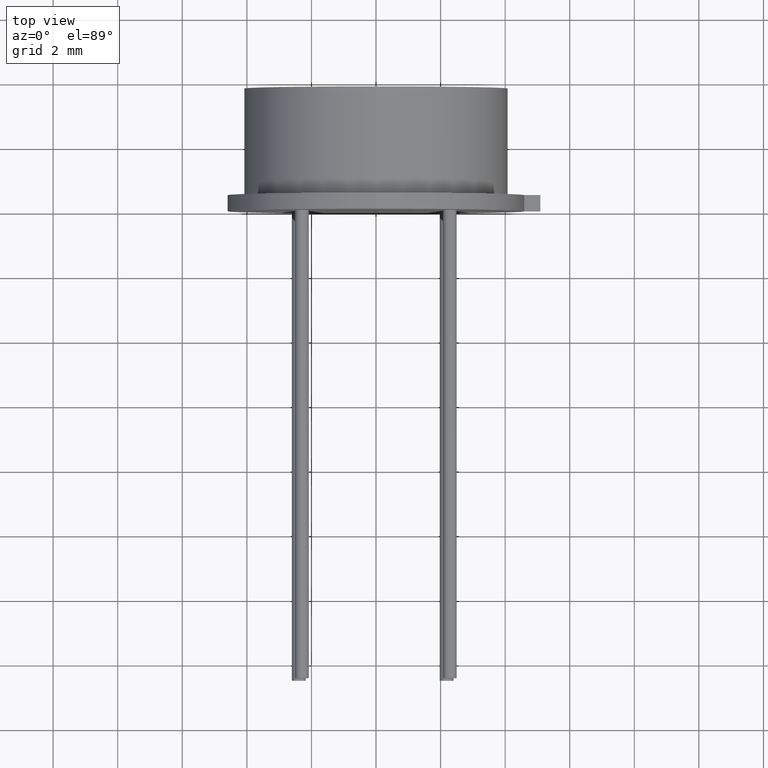
[diagram: clean part render]
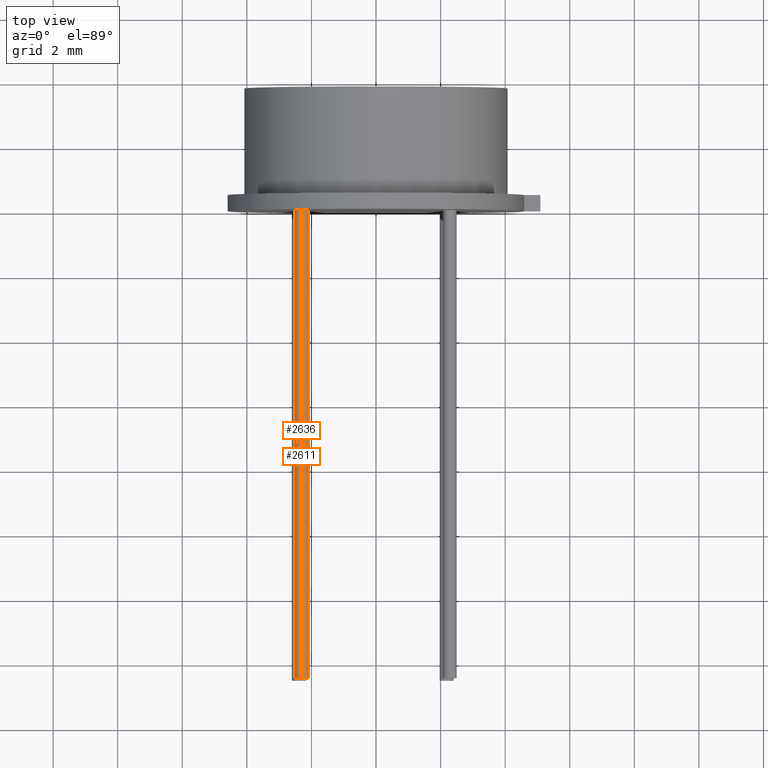
[diagram: same view with one multi-face feature highlighted, each face labeled with its STEP entity id]
A machine part, top view. The highlighted faces form ONE feature: a constant-radius fillet chain: 2 tangent blend faces with common blend radius 0.215 mm. The faces share edges in the B-rep.
Their STEP definitions:
[1] entity #2636 (Cylinder):
#31 = CARTESIAN_POINT ( 'NONE',  ( -2.297499982386057571, 0.000000000000000000, 2.284999999999999254 ) ) ;
#122 = EDGE_CURVE ( 'NONE', #2667, #3301, #2443, .T. ) ;
#218 = LINE ( 'NONE', #2251, #467 ) ;
#244 = ORIENTED_EDGE ( 'NONE', *, *, #2541, .F. ) ;
#465 = CARTESIAN_POINT ( 'NONE',  ( -2.297499982386057571, 0.000000000000000000, 2.499999999999999556 ) ) ;
#467 = VECTOR ( 'NONE', #2756, 1000.000000000000000 ) ;
#579 = ORIENTED_EDGE ( 'NONE', *, *, #3391, .T. ) ;
#737 = EDGE_LOOP ( 'NONE', ( #244, #2175, #579, #3565 ) ) ;
#907 = DIRECTION ( 'NONE',  ( -0.000000000000000000, 1.000000000000000000, -0.000000000000000000 ) ) ;
#924 = DIRECTION ( 'NONE',  ( 0.000000000000000000, 0.000000000000000000, 1.000000000000000000 ) ) ;
#989 = CARTESIAN_POINT ( 'NONE',  ( -2.297499982386057571, -14.50000000000000000, 2.499999999999999556 ) ) ;
#1161 = FACE_OUTER_BOUND ( 'NONE', #737, .T. ) ;
#1227 = EDGE_CURVE ( 'NONE', #2686, #2569, #3092, .T. ) ;
#1341 = AXIS2_PLACEMENT_3D ( 'NONE', #31, #3563, #924 ) ;
#1428 = LINE ( 'NONE', #3405, #2961 ) ;
#1443 = CYLINDRICAL_SURFACE ( 'NONE', #3332, 0.2150000000000003575 ) ;
#1466 = CARTESIAN_POINT ( 'NONE',  ( -2.297499982386057571, -14.50000000000000000, 2.284999999999999254 ) ) ;
#1873 = DIRECTION ( 'NONE',  ( 0.000000000000000000, 0.000000000000000000, 1.000000000000000000 ) ) ;
#1981 = CARTESIAN_POINT ( 'NONE',  ( -2.297499982386057571, 0.000000000000000000, 2.069999999999998952 ) ) ;
#2175 = ORIENTED_EDGE ( 'NONE', *, *, #122, .F. ) ;
#2223 = CARTESIAN_POINT ( 'NONE',  ( -2.297499982386057571, -14.50000000000000000, 2.284999999999999254 ) ) ;
#2251 = CARTESIAN_POINT ( 'NONE',  ( -2.297499982386057571, -14.50000000000000000, 2.499999999999999556 ) ) ;
#2443 = CIRCLE ( 'NONE', #3236, 0.2150000000000003575 ) ;
#2523 = DIRECTION ( 'NONE',  ( -0.000000000000000000, 1.000000000000000000, -0.000000000000000000 ) ) ;
#2541 = EDGE_CURVE ( 'NONE', #3301, #2569, #1428, .T. ) ;
#2569 = VERTEX_POINT ( 'NONE', #1981 ) ;
#2636 = ADVANCED_FACE ( 'NONE', ( #1161 ), #1443, .T. ) ;
#2667 = VERTEX_POINT ( 'NONE', #989 ) ;
#2686 = VERTEX_POINT ( 'NONE', #465 ) ;
#2756 = DIRECTION ( 'NONE',  ( -0.000000000000000000, 1.000000000000000000, -0.000000000000000000 ) ) ;
#2809 = DIRECTION ( 'NONE',  ( 0.000000000000000000, -1.000000000000000000, 0.000000000000000000 ) ) ;
#2961 = VECTOR ( 'NONE', #2523, 1000.000000000000000 ) ;
#3092 = CIRCLE ( 'NONE', #1341, 0.2150000000000003575 ) ;
#3161 = CARTESIAN_POINT ( 'NONE',  ( -2.297499982386057571, -14.50000000000000000, 2.069999999999998952 ) ) ;
#3169 = DIRECTION ( 'NONE',  ( 0.000000000000000000, 0.000000000000000000, -1.000000000000000000 ) ) ;
#3236 = AXIS2_PLACEMENT_3D ( 'NONE', #2223, #2809, #3169 ) ;
#3301 = VERTEX_POINT ( 'NONE', #3161 ) ;
#3332 = AXIS2_PLACEMENT_3D ( 'NONE', #1466, #907, #1873 ) ;
#3391 = EDGE_CURVE ( 'NONE', #2667, #2686, #218, .T. ) ;
#3405 = CARTESIAN_POINT ( 'NONE',  ( -2.297499982386057571, -14.50000000000000000, 2.069999999999998952 ) ) ;
#3563 = DIRECTION ( 'NONE',  ( -0.000000000000000000, -1.000000000000000000, -0.000000000000000000 ) ) ;
#3565 = ORIENTED_EDGE ( 'NONE', *, *, #1227, .T. ) ;
[2] entity #2611 (Cylinder):
#82 = DIRECTION ( 'NONE',  ( 0.000000000000000000, 0.000000000000000000, 1.000000000000000000 ) ) ;
#186 = CIRCLE ( 'NONE', #2250, 0.2150000000000003575 ) ;
#218 = LINE ( 'NONE', #2251, #467 ) ;
#465 = CARTESIAN_POINT ( 'NONE',  ( -2.297499982386057571, 0.000000000000000000, 2.499999999999999556 ) ) ;
#467 = VECTOR ( 'NONE', #2756, 1000.000000000000000 ) ;
#539 = EDGE_CURVE ( 'NONE', #2569, #2686, #186, .T. ) ;
#564 = CARTESIAN_POINT ( 'NONE',  ( -2.297499982386057571, -14.50000000000000000, 2.284999999999999254 ) ) ;
#867 = FACE_OUTER_BOUND ( 'NONE', #2144, .T. ) ;
#900 = AXIS2_PLACEMENT_3D ( 'NONE', #564, #3735, #1177 ) ;
#989 = CARTESIAN_POINT ( 'NONE',  ( -2.297499982386057571, -14.50000000000000000, 2.499999999999999556 ) ) ;
#1177 = DIRECTION ( 'NONE',  ( 0.000000000000000000, 0.000000000000000000, 1.000000000000000000 ) ) ;
#1212 = EDGE_CURVE ( 'NONE', #3301, #2667, #3278, .T. ) ;
#1428 = LINE ( 'NONE', #3405, #2961 ) ;
#1465 = ORIENTED_EDGE ( 'NONE', *, *, #539, .T. ) ;
#1536 = DIRECTION ( 'NONE',  ( -0.000000000000000000, -1.000000000000000000, -0.000000000000000000 ) ) ;
#1775 = CARTESIAN_POINT ( 'NONE',  ( -2.297499982386057571, 0.000000000000000000, 2.284999999999999254 ) ) ;
#1981 = CARTESIAN_POINT ( 'NONE',  ( -2.297499982386057571, 0.000000000000000000, 2.069999999999998952 ) ) ;
#2130 = AXIS2_PLACEMENT_3D ( 'NONE', #2955, #2996, #2389 ) ;
#2144 = EDGE_LOOP ( 'NONE', ( #2997, #3338, #1465, #3177 ) ) ;
#2250 = AXIS2_PLACEMENT_3D ( 'NONE', #1775, #1536, #82 ) ;
#2251 = CARTESIAN_POINT ( 'NONE',  ( -2.297499982386057571, -14.50000000000000000, 2.499999999999999556 ) ) ;
#2389 = DIRECTION ( 'NONE',  ( 0.000000000000000000, 0.000000000000000000, -1.000000000000000000 ) ) ;
#2523 = DIRECTION ( 'NONE',  ( -0.000000000000000000, 1.000000000000000000, -0.000000000000000000 ) ) ;
#2541 = EDGE_CURVE ( 'NONE', #3301, #2569, #1428, .T. ) ;
#2569 = VERTEX_POINT ( 'NONE', #1981 ) ;
#2611 = ADVANCED_FACE ( 'NONE', ( #867 ), #3172, .T. ) ;
#2667 = VERTEX_POINT ( 'NONE', #989 ) ;
#2686 = VERTEX_POINT ( 'NONE', #465 ) ;
#2756 = DIRECTION ( 'NONE',  ( -0.000000000000000000, 1.000000000000000000, -0.000000000000000000 ) ) ;
#2955 = CARTESIAN_POINT ( 'NONE',  ( -2.297499982386057571, -14.50000000000000000, 2.284999999999999254 ) ) ;
#2961 = VECTOR ( 'NONE', #2523, 1000.000000000000000 ) ;
#2996 = DIRECTION ( 'NONE',  ( 0.000000000000000000, -1.000000000000000000, 0.000000000000000000 ) ) ;
#2997 = ORIENTED_EDGE ( 'NONE', *, *, #1212, .F. ) ;
#3161 = CARTESIAN_POINT ( 'NONE',  ( -2.297499982386057571, -14.50000000000000000, 2.069999999999998952 ) ) ;
#3172 = CYLINDRICAL_SURFACE ( 'NONE', #900, 0.2150000000000003575 ) ;
#3177 = ORIENTED_EDGE ( 'NONE', *, *, #3391, .F. ) ;
#3278 = CIRCLE ( 'NONE', #2130, 0.2150000000000003575 ) ;
#3301 = VERTEX_POINT ( 'NONE', #3161 ) ;
#3338 = ORIENTED_EDGE ( 'NONE', *, *, #2541, .T. ) ;
#3391 = EDGE_CURVE ( 'NONE', #2667, #2686, #218, .T. ) ;
#3405 = CARTESIAN_POINT ( 'NONE',  ( -2.297499982386057571, -14.50000000000000000, 2.069999999999998952 ) ) ;
#3735 = DIRECTION ( 'NONE',  ( -0.000000000000000000, 1.000000000000000000, -0.000000000000000000 ) ) ;